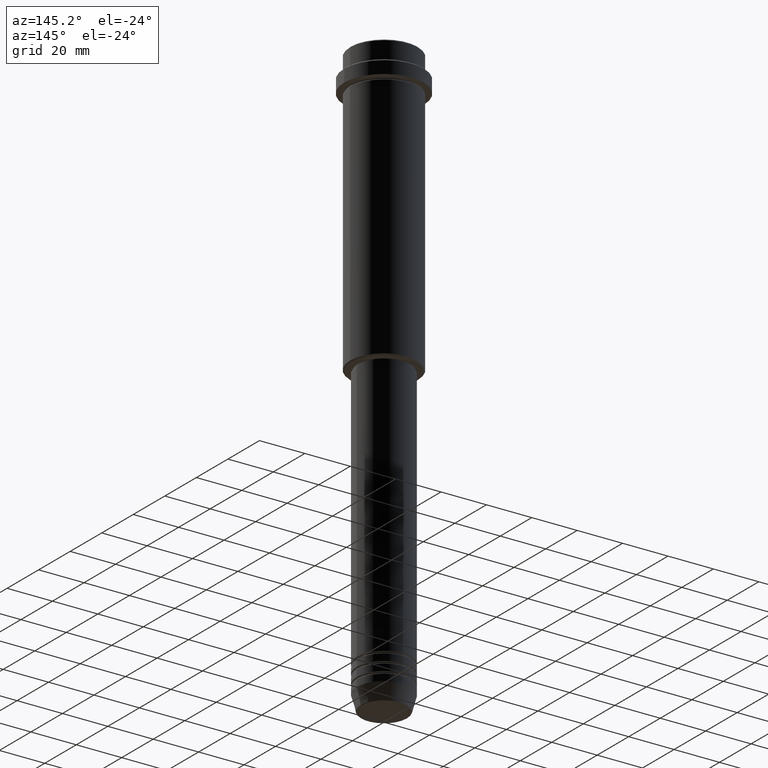
[diagram: clean part render]
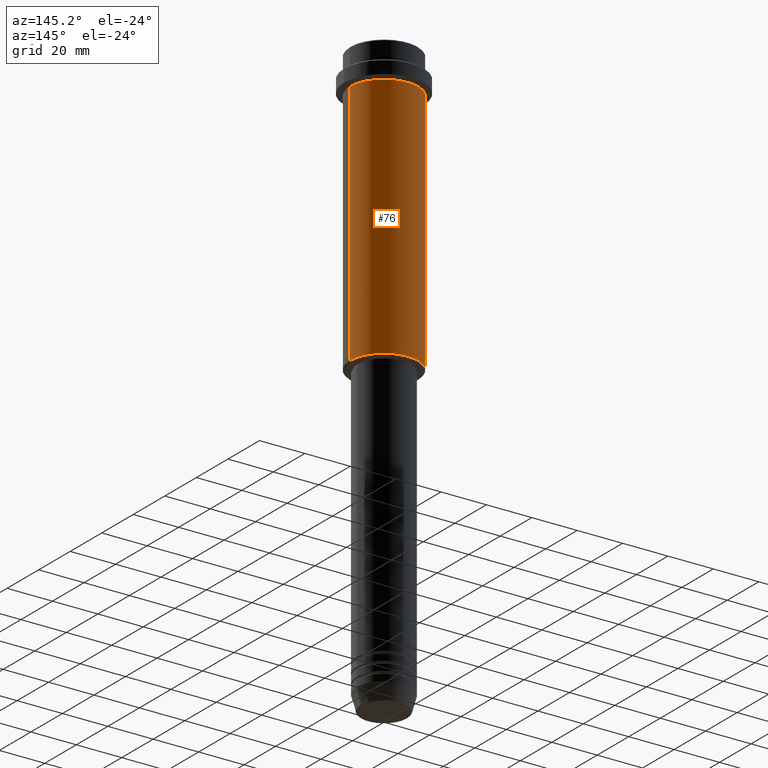
[diagram: same view with one face highlighted and labeled with its STEP entity id]
A machine part, auxiliary view. The second image highlights one B-rep face of the part: STEP entity #76.
In plain terms, the highlighted cylindrical surface (partial cylindrical patch) has radius 15 mm, axis along (-0, -0, 1).
Its self-contained STEP definition (entity closure, byte-faithful):
#76 = ADVANCED_FACE ( 'NONE', ( #632 ), #326, .T. ) ;
#106 = CARTESIAN_POINT ( 'NONE',  ( 0.000000000000000000, 0.000000000000000000, 0.000000000000000000 ) ) ;
#126 = VERTEX_POINT ( 'NONE', #526 ) ;
#144 = ORIENTED_EDGE ( 'NONE', *, *, #243, .F. ) ;
#148 = LINE ( 'NONE', #257, #795 ) ;
#162 = EDGE_CURVE ( 'NONE', #126, #504, #1067, .T. ) ;
#208 = CARTESIAN_POINT ( 'NONE',  ( 0.000000000000000000, 0.000000000000000000, -124.4999999999999574 ) ) ;
#243 = EDGE_CURVE ( 'NONE', #126, #894, #148, .T. ) ;
#257 = CARTESIAN_POINT ( 'NONE',  ( 15.00000000000000000, 0.000000000000000000, 0.000000000000000000 ) ) ;
#316 = DIRECTION ( 'NONE',  ( 1.000000000000000000, 0.000000000000000000, 0.000000000000000000 ) ) ;
#326 = CYLINDRICAL_SURFACE ( 'NONE', #1114, 15.00000000000000000 ) ;
#343 = CIRCLE ( 'NONE', #593, 15.00000000000000178 ) ;
#356 = DIRECTION ( 'NONE',  ( -0.000000000000000000, -0.000000000000000000, 1.000000000000000000 ) ) ;
#470 = CARTESIAN_POINT ( 'NONE',  ( -15.00000000000000000, 1.836970198721029589E-15, 0.000000000000000000 ) ) ;
#504 = VERTEX_POINT ( 'NONE', #640 ) ;
#526 = CARTESIAN_POINT ( 'NONE',  ( 15.00000000000000000, 0.000000000000000000, -124.4999999999999574 ) ) ;
#540 = ORIENTED_EDGE ( 'NONE', *, *, #162, .T. ) ;
#593 = AXIS2_PLACEMENT_3D ( 'NONE', #738, #724, #316 ) ;
#632 = FACE_OUTER_BOUND ( 'NONE', #1005, .T. ) ;
#638 = ORIENTED_EDGE ( 'NONE', *, *, #736, .T. ) ;
#640 = CARTESIAN_POINT ( 'NONE',  ( -15.00000000000000000, 1.836970198721029589E-15, -124.4999999999999574 ) ) ;
#724 = DIRECTION ( 'NONE',  ( -0.000000000000000000, -0.000000000000000000, 1.000000000000000000 ) ) ;
#736 = EDGE_CURVE ( 'NONE', #504, #940, #1149, .T. ) ;
#738 = CARTESIAN_POINT ( 'NONE',  ( 0.000000000000000000, 0.000000000000000000, -16.00000000000000000 ) ) ;
#765 = DIRECTION ( 'NONE',  ( 1.000000000000000000, 0.000000000000000000, 0.000000000000000000 ) ) ;
#795 = VECTOR ( 'NONE', #356, 1000.000000000000000 ) ;
#850 = DIRECTION ( 'NONE',  ( -1.000000000000000000, 0.000000000000000000, 0.000000000000000000 ) ) ;
#884 = AXIS2_PLACEMENT_3D ( 'NONE', #208, #1396, #850 ) ;
#894 = VERTEX_POINT ( 'NONE', #1170 ) ;
#903 = EDGE_CURVE ( 'NONE', #894, #940, #343, .T. ) ;
#940 = VERTEX_POINT ( 'NONE', #1052 ) ;
#1005 = EDGE_LOOP ( 'NONE', ( #540, #638, #1123, #144 ) ) ;
#1052 = CARTESIAN_POINT ( 'NONE',  ( -15.00000000000000355, 1.836970198721029983E-15, -16.00000000000000000 ) ) ;
#1067 = CIRCLE ( 'NONE', #884, 15.00000000000000000 ) ;
#1070 = VECTOR ( 'NONE', #1247, 1000.000000000000000 ) ;
#1114 = AXIS2_PLACEMENT_3D ( 'NONE', #106, #1180, #765 ) ;
#1123 = ORIENTED_EDGE ( 'NONE', *, *, #903, .F. ) ;
#1149 = LINE ( 'NONE', #470, #1070 ) ;
#1170 = CARTESIAN_POINT ( 'NONE',  ( 15.00000000000000178, 0.000000000000000000, -16.00000000000000000 ) ) ;
#1180 = DIRECTION ( 'NONE',  ( -0.000000000000000000, -0.000000000000000000, 1.000000000000000000 ) ) ;
#1247 = DIRECTION ( 'NONE',  ( -0.000000000000000000, -0.000000000000000000, 1.000000000000000000 ) ) ;
#1396 = DIRECTION ( 'NONE',  ( -0.000000000000000000, -0.000000000000000000, 1.000000000000000000 ) ) ;